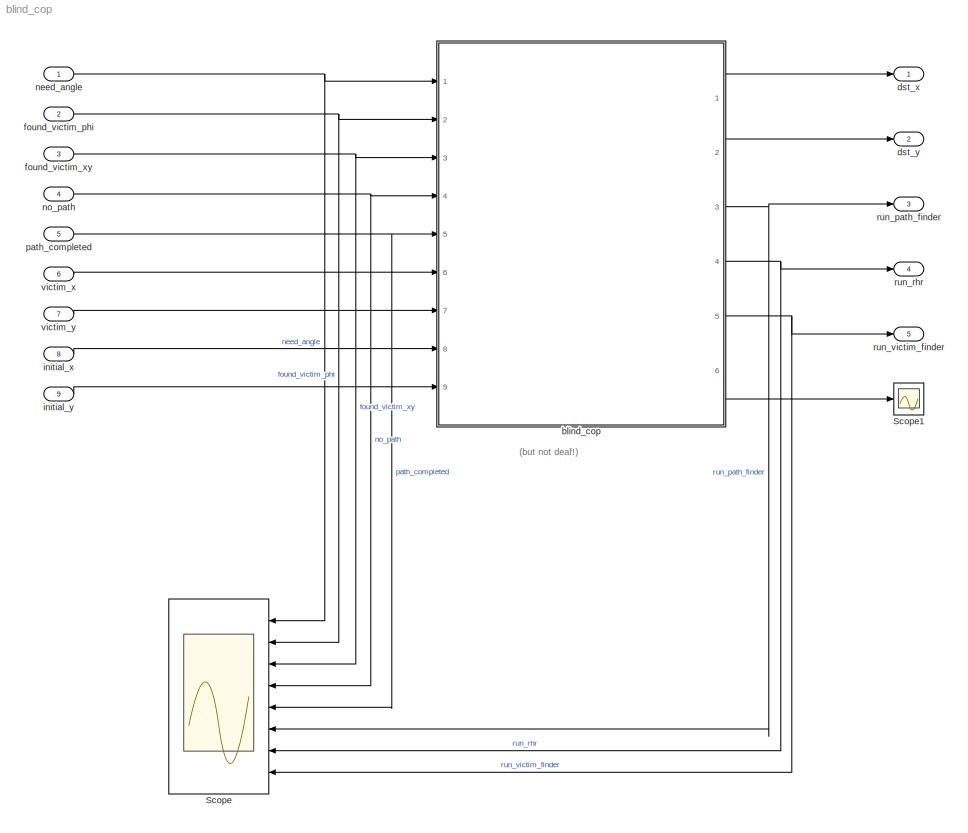
MODEL blind_cop
KIND model
BLOCK [Scope] Scope
  NumInputPorts = 8
  Ports = [8]
  SID = 25
  ScopeSpecificationString = Simulink.scopes.TimeScopeBlockCfg('CurrentConfiguration', extmgr.ConfigurationSet(extmgr.Configuration('Core','General UI',true),extmgr.Configuration('Core','Source UI',true),extmgr.Configuration('Sources','WiredSimulink',true,'DataLoggingLimitDataPoints',true,'DataLoggingSaveFormat','Array','DataLoggingDecimation','1','DataLoggingDecimateData',true),extmgr.Configuration('Visuals','Time Domain',tr...<+7065ch>
BLOCK [Scope] Scope1
  Ports = [1]
  SID = 28
  ScopeSpecificationString = Simulink.scopes.TimeScopeBlockCfg('CurrentConfiguration', extmgr.ConfigurationSet(extmgr.Configuration('Core','General UI',true),extmgr.Configuration('Core','Source UI',true),extmgr.Configuration('Sources','WiredSimulink',true,'DataLoggingVariableName','ScopeData1'),extmgr.Configuration('Visuals','Time Domain',true,'SerializedDisplays',{struct('MinYLimReal','0.9','MaxYLimReal','1.1','YLabelReal','...<+1427ch>
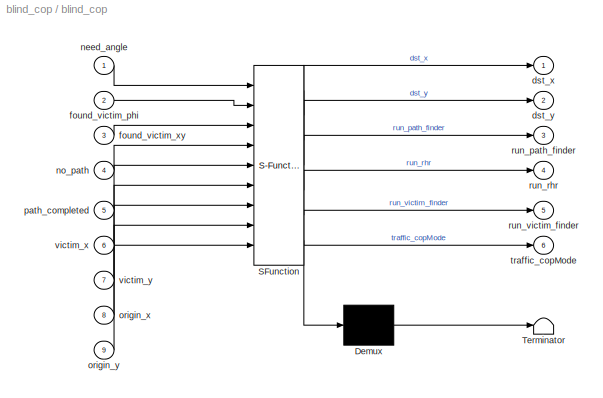
BLOCK [SubSystem] blind_cop
  ErrorFcn = Stateflow.Translate.translate
  PermitHierarchicalResolution = ExplicitOnly
  Ports = [9, 6]
  RequestExecContextInheritance = off
  SFBlockType = Chart
  SID = 1
  TreatAsAtomicUnit = on
  Variant = off
BLOCK [Demux] blind_cop/ Demux 
  Outputs = 1
  Ports = [1, 1]
  SID = 1::78
BLOCK [S-Function] blind_cop/ SFunction 
  EnableBusSupport = on
  FunctionName = sf_sfun
  PortCounts = [9 7]
  Ports = [9, 7]
  SFunctionDeploymentMode = off
  SID = 1::77
  Tag = Stateflow S-Function blind_cop 1
BLOCK [Terminator] blind_cop/ Terminator 
  SID = 1::99
BLOCK [Outport] blind_cop/dst_x
  IconDisplay = Port number
  SID = 1::91
BLOCK [Outport] blind_cop/dst_y
  IconDisplay = Port number
  Port = 2
  SID = 1::90
BLOCK [Inport] blind_cop/found_victim_phi
  IconDisplay = Port number
  Port = 2
  SID = 1::92
BLOCK [Inport] blind_cop/found_victim_xy
  IconDisplay = Port number
  Port = 3
  SID = 1::93
BLOCK [Inport] blind_cop/need_angle
  IconDisplay = Port number
  SID = 1::111
BLOCK [Inport] blind_cop/no_path
  IconDisplay = Port number
  Port = 4
  SID = 1::95
BLOCK [Inport] blind_cop/origin_x
  IconDisplay = Port number
  Port = 8
  SID = 1::104
BLOCK [Inport] blind_cop/origin_y
  IconDisplay = Port number
  Port = 9
  SID = 1::105
BLOCK [Inport] blind_cop/path_completed
  IconDisplay = Port number
  Port = 5
  SID = 1::109
BLOCK [Outport] blind_cop/run_path_finder
  IconDisplay = Port number
  Port = 3
  SID = 1::100
BLOCK [Outport] blind_cop/run_rhr
  IconDisplay = Port number
  Port = 4
  SID = 1::101
BLOCK [Outport] blind_cop/run_victim_finder
  IconDisplay = Port number
  Port = 5
  SID = 1::98
BLOCK [Outport] blind_cop/traffic_copMode
  IconDisplay = Port number
  Port = 6
  SID = 1::110
BLOCK [Inport] blind_cop/victim_x
  IconDisplay = Port number
  Port = 6
  SID = 1::85
BLOCK [Inport] blind_cop/victim_y
  IconDisplay = Port number
  Port = 7
  SID = 1::86
BLOCK [Outport] dst_x
  IconDisplay = Port number
  SID = 12
BLOCK [Outport] dst_y
  IconDisplay = Port number
  Port = 2
  SID = 13
BLOCK [Inport] found_victim_phi
  IconDisplay = Port number
  Port = 2
  SID = 4
BLOCK [Inport] found_victim_xy
  IconDisplay = Port number
  Port = 3
  SID = 6
BLOCK [Inport] initial_x
  IconDisplay = Port number
  Port = 8
  SID = 26
BLOCK [Inport] initial_y
  IconDisplay = Port number
  Port = 9
  SID = 27
BLOCK [Inport] need_angle
  IconDisplay = Port number
  SID = 61
BLOCK [Inport] no_path
  IconDisplay = Port number
  Port = 4
  SID = 24
BLOCK [Inport] path_completed
  IconDisplay = Port number
  Port = 5
  SID = 23
BLOCK [Outport] run_path_finder
  IconDisplay = Port number
  Port = 3
  SID = 15
BLOCK [Outport] run_rhr
  IconDisplay = Port number
  Port = 4
  SID = 14
BLOCK [Outport] run_victim_finder
  IconDisplay = Port number
  Port = 5
  SID = 16
BLOCK [Inport] victim_x
  IconDisplay = Port number
  Port = 6
  SID = 7
BLOCK [Inport] victim_y
  IconDisplay = Port number
  Port = 7
  SID = 8
ANNOTATION (root): (but not deaf!)
LINE blind_cop/ Demux :1 -> blind_cop/ Terminator :1
LINE blind_cop/ SFunction :1 -> blind_cop/ Demux :1
LINE blind_cop/ SFunction :2 -> blind_cop/dst_x:1
LINE blind_cop/ SFunction :3 -> blind_cop/dst_y:1
LINE blind_cop/ SFunction :4 -> blind_cop/run_path_finder:1
LINE blind_cop/ SFunction :5 -> blind_cop/run_rhr:1
LINE blind_cop/ SFunction :6 -> blind_cop/run_victim_finder:1
LINE blind_cop/ SFunction :7 -> blind_cop/traffic_copMode:1
LINE blind_cop/found_victim_phi:1 -> blind_cop/ SFunction :2
LINE blind_cop/found_victim_xy:1 -> blind_cop/ SFunction :3
LINE blind_cop/need_angle:1 -> blind_cop/ SFunction :1
LINE blind_cop/no_path:1 -> blind_cop/ SFunction :4
LINE blind_cop/origin_x:1 -> blind_cop/ SFunction :8
LINE blind_cop/origin_y:1 -> blind_cop/ SFunction :9
LINE blind_cop/path_completed:1 -> blind_cop/ SFunction :5
LINE blind_cop/victim_x:1 -> blind_cop/ SFunction :6
LINE blind_cop/victim_y:1 -> blind_cop/ SFunction :7
LINE blind_cop:1 -> dst_x:1
LINE blind_cop:2 -> dst_y:1
NET blind_cop:3 -> Scope:6, run_path_finder:1
NET blind_cop:4 -> Scope:7, run_rhr:1
NET blind_cop:5 -> Scope:8, run_victim_finder:1
LINE blind_cop:6 -> Scope1:1
NET found_victim_phi:1 -> Scope:2, blind_cop:2
NET found_victim_xy:1 -> Scope:3, blind_cop:3
LINE initial_x:1 -> blind_cop:8
LINE initial_y:1 -> blind_cop:9
NET need_angle:1 -> Scope:1, blind_cop:1
NET no_path:1 -> Scope:4, blind_cop:4
NET path_completed:1 -> Scope:5, blind_cop:5
LINE victim_x:1 -> blind_cop:6
LINE victim_y:1 -> blind_cop:7
note: NET lines group one-source signal fan-out (src -> all destinations, sorted); 1:1 wires keep LINE
CHART blind_cop states=11 transitions=13
  STATE_LABEL 'InitialRHR\\nentry:\\nrun_rhr = 1;\\nrun_path_finder = 0;\\nrun_victim_finder = 0;'
  STATE_LABEL 'GetTheLadiesOrGentlemen\\n% Done ^.^\\nentry:\\nrun_path_finder = 0;'
  STATE_LABEL 'RunToVictim\\nentry:\\nrun_rhr = 0;\\nrun_path_finder = 1;\\nrun_victim_finder = 0;\\ndst_x = victim_x;\\ndst_y = victim_y;\\n'
  STATE_LABEL 'NoPathFound\\n% fault tolerance state: no path found but\\n% by assumtions there is one -> faulty sensor data -> RHR\\nentry:\\nrun_rhr = 1;\\nrun_path_finder = 0;\\nexit:\\nrun_rhr = 0;'
  STATE_LABEL 'GetOuttaHere\\nentry:\\nrun_path_finder = 1;\\ndst_x = origin_x;\\ndst_y = origin_y;\\n'
  STATE_LABEL 'SenseAngle\\nentry:\\nrun_rhr = 0;\\nrun_victim_finder = 1;'
  STATE_LABEL 'FollowPath'
  STATE_LABEL 'InitialRHR'
  STATE_LABEL 'Docking\\n% no-op'
  STATE_LABEL 'WaitPathZero\\nentry:\\nrun_path_finder = 0;'
  STATE_LABEL 'WaitAngleZero\\nentry:\\nrun_victim_finder = 0;'
